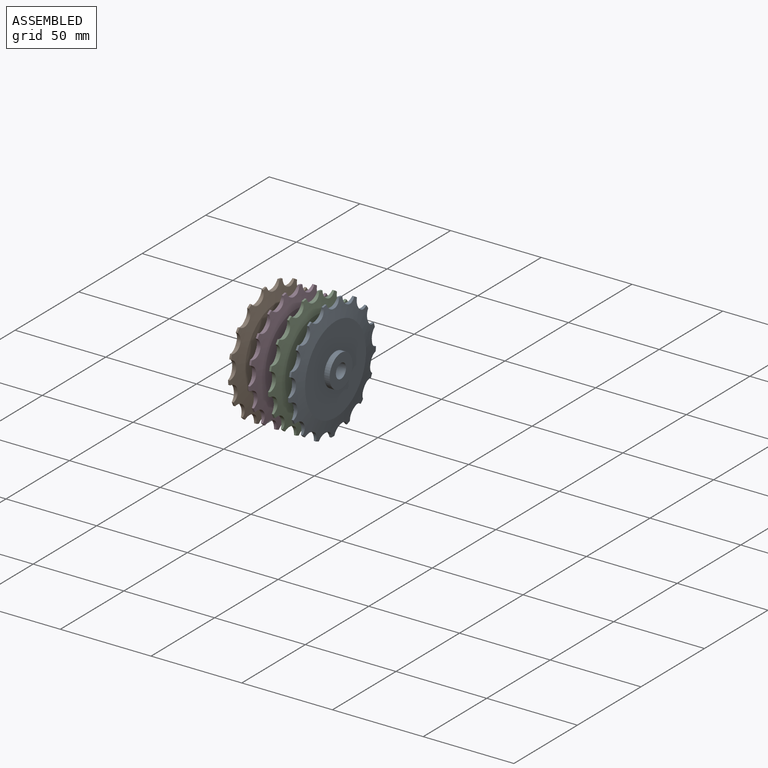
[diagram: assembled view]
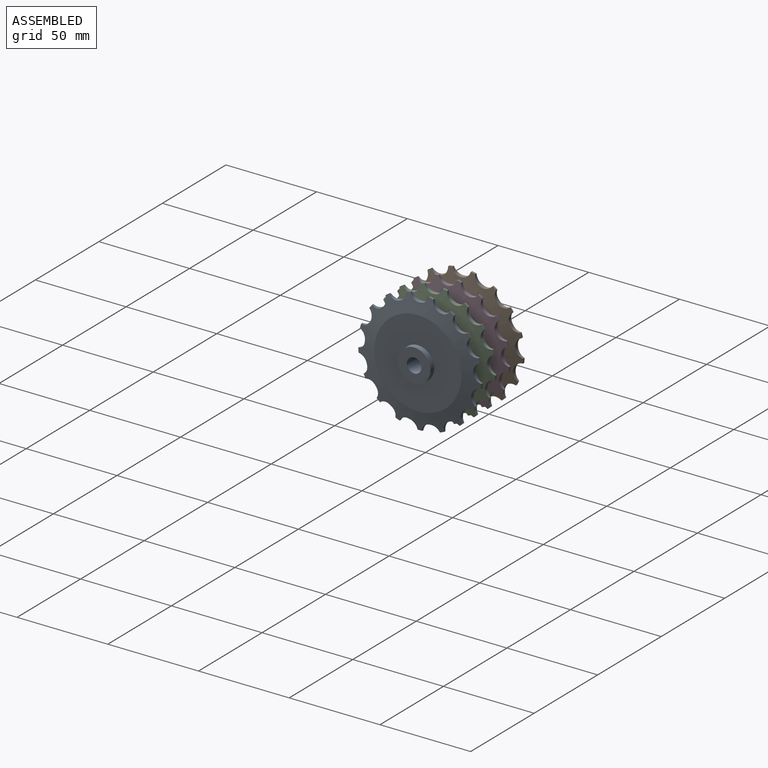
[diagram: assembled view, second angle]
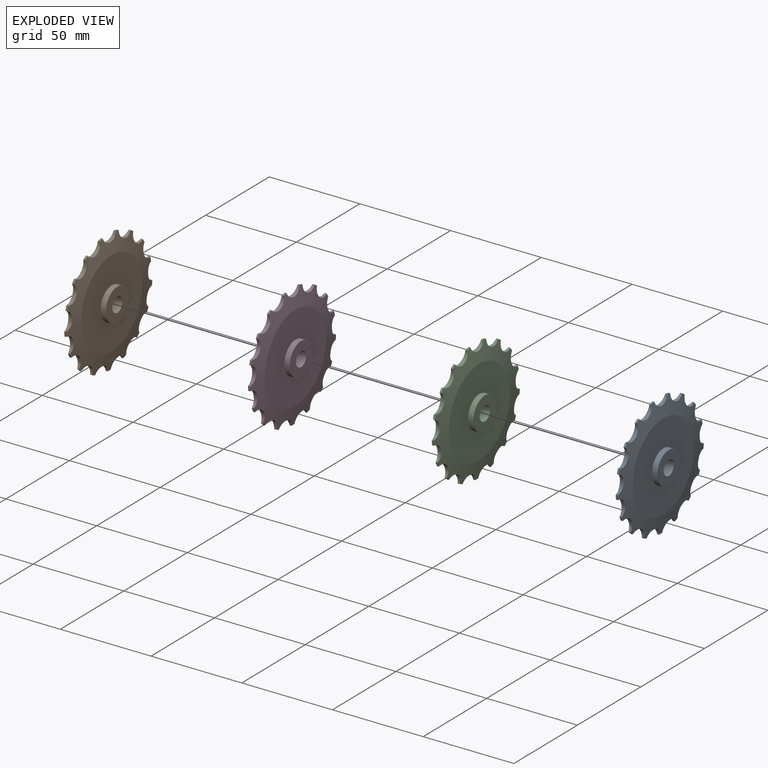
[diagram: exploded view]
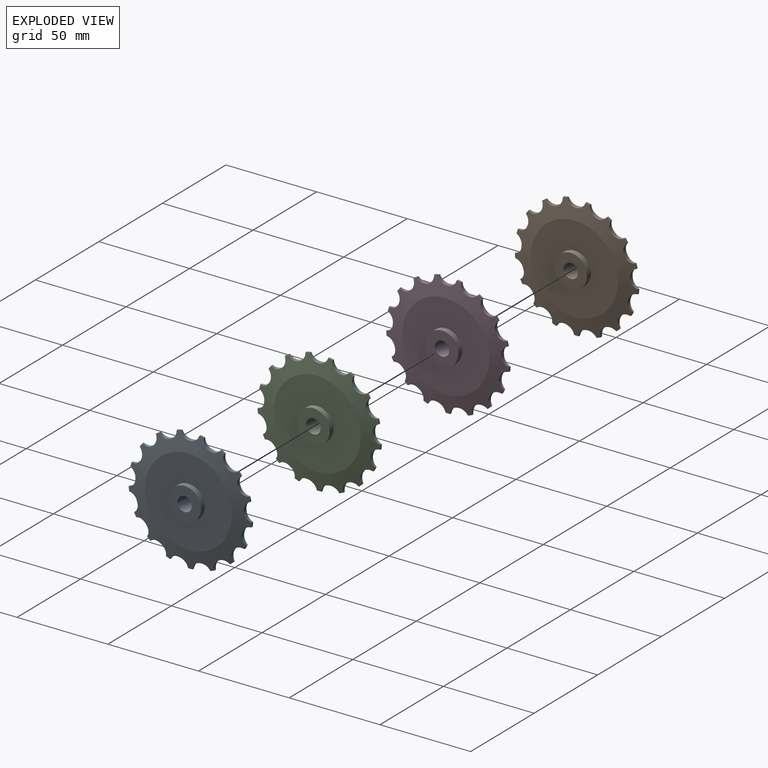
[diagram: exploded view, second angle]
ASSEMBLY  parts=4 mates=3
PART A: 111 faces, bbox 10x68x68 mm
  f0: cylinder r=34mm len=2.49mm, axis (1,0,0), area 2.5mm2, adj f3,f96,f104,f107
  f1: cylinder r=4.75mm len=5.34mm, axis (1,0,0), area 10.7mm2, adj f2,f5,f96,f104
  f2: plane 1.16x0.41mm, normal (0,-0.75,0.66), area 0.6mm2, adj f1,f6,f96,f104
  f3: plane 1.16x0.54mm, normal (0,1,-0.02), area 0.6mm2, adj f0,f4,f96,f104
  f4: cylinder r=4.75mm len=4.54mm, axis (1,0,0), area 10.7mm2, adj f3,f5,f96,f104
  f5: cylinder r=30mm len=2.2mm, axis (1,0,0), area 1.3mm2, adj f1,f4,f96,f104
  f6: cylinder r=34mm len=2.15mm, axis (1,0,0), area 2.5mm2, adj f2,f9,f96,f104
  f7: cylinder r=4.75mm len=5.44mm, axis (1,0,0), area 10.7mm2, adj f8,f11,f96,f104
  f8: plane 1.16x0.48mm, normal (0,-0.46,0.89), area 0.6mm2, adj f7,f12,f96,f104
  f9: plane 1.16x0.5mm, normal (0,0.92,-0.38), area 0.6mm2, adj f6,f10,f96,f104
  f10: cylinder r=4.75mm len=5.35mm, axis (1,0,0), area 10.7mm2, adj f9,f11,f96,f104
  f11: cylinder r=30mm len=2.2mm, axis (1,0,0), area 1.3mm2, adj f7,f10,f96,f104
  f12: cylinder r=34mm len=2.02mm, axis (1,0,0), area 2.5mm2, adj f8,f15,f96,f104
  f13: cylinder r=4.75mm len=4.81mm, axis (1,0,0), area 10.7mm2, adj f14,f17,f96,f104
  f14: plane 1.16x0.54mm, normal (0,-0.11,0.99), area 0.6mm2, adj f13,f18,f96,f104
  f15: plane 1.16x0.39mm, normal (0,0.73,-0.69), area 0.6mm2, adj f12,f16,f96,f104
  f16: cylinder r=4.75mm len=5.43mm, axis (1,0,0), area 10.7mm2, adj f15,f17,f96,f104
  f17: cylinder r=30mm len=2.2mm, axis (1,0,0), area 1.3mm2, adj f13,f16,f96,f104
  f18: cylinder r=34mm len=2.43mm, axis (1,0,0), area 2.5mm2, adj f14,f21,f96,f104
  f19: cylinder r=4.75mm len=4.2mm, axis (1,0,0), area 10.7mm2, adj f20,f23,f96,f104
  f20: plane 1.16x0.52mm, normal (0,0.25,0.97), area 0.6mm2, adj f19,f24,f96,f104
  f21: plane 1.16x0.49mm, normal (0,0.43,-0.9), area 0.6mm2, adj f18,f22,f96,f104
  f22: cylinder r=4.75mm len=4.78mm, axis (1,0,0), area 10.7mm2, adj f21,f23,f96,f104
  f23: cylinder r=30mm len=2.2mm, axis (1,0,0), area 1.3mm2, adj f19,f22,f96,f104
  f24: cylinder r=34mm len=2.52mm, axis (1,0,0), area 2.5mm2, adj f20,f27,f96,f104
  f25: cylinder r=4.75mm len=5.19mm, axis (1,0,0), area 10.7mm2, adj f26,f29,f96,f104
  f26: plane 1.16x0.44mm, normal (0,0.59,0.81), area 0.6mm2, adj f25,f30,f96,f104
  f27: plane 1.16x0.54mm, normal (0,0.07,-1), area 0.6mm2, adj f24,f28,f96,f104
  f28: cylinder r=4.75mm len=4.24mm, axis (1,0,0), area 10.7mm2, adj f27,f29,f96,f104
  f29: cylinder r=30mm len=2.2mm, axis (1,0,0), area 1.3mm2, adj f25,f28,f96,f104
  f30: cylinder r=34mm len=2.26mm, axis (1,0,0), area 2.5mm2, adj f26,f33,f96,f104
  f31: cylinder r=4.75mm len=5.48mm, axis (1,0,0), area 10.7mm2, adj f32,f35,f96,f104
  f32: plane 1.16x0.45mm, normal (0,0.84,0.54), area 0.6mm2, adj f31,f36,f96,f104
  f33: plane 1.16x0.52mm, normal (0,-0.29,-0.96), area 0.6mm2, adj f30,f34,f96,f104
  f34: cylinder r=4.75mm len=5.21mm, axis (1,0,0), area 10.7mm2, adj f33,f35,f96,f104
  f35: cylinder r=30mm len=2.2mm, axis (1,0,0), area 1.3mm2, adj f31,f34,f96,f104
  f36: cylinder r=34mm len=1.87mm, axis (1,0,0), area 2.5mm2, adj f32,f39,f96,f104
  f37: cylinder r=4.75mm len=5.03mm, axis (1,0,0), area 10.7mm2, adj f38,f41,f96,f104
  f38: plane 1.16x0.53mm, normal (0,0.98,0.2), area 0.6mm2, adj f37,f42,f96,f104
  f39: plane 1.16x0.42mm, normal (0,-0.62,-0.79), area 0.6mm2, adj f36,f40,f96,f104
  f40: cylinder r=4.75mm len=5.48mm, axis (1,0,0), area 10.7mm2, adj f39,f41,f96,f104
  f41: cylinder r=30mm len=2.2mm, axis (1,0,0), area 1.3mm2, adj f37,f40,f96,f104
  f42: cylinder r=34mm len=2.36mm, axis (1,0,0), area 2.5mm2, adj f38,f45,f96,f104
  f43: cylinder r=4.75mm len=3.9mm, axis (1,0,0), area 10.7mm2, adj f44,f47,f96,f104
  f44: plane 1.16x0.53mm, normal (0,0.99,-0.16), area 0.6mm2, adj f43,f48,f96,f104
  f45: plane 1.16x0.47mm, normal (0,-0.86,-0.51), area 0.6mm2, adj f42,f46,f96,f104
  f46: cylinder r=4.75mm len=5.01mm, axis (1,0,0), area 10.7mm2, adj f45,f47,f96,f104
  f47: cylinder r=30mm len=2.2mm, axis (1,0,0), area 1.3mm2, adj f43,f46,f96,f104
  f48: cylinder r=34mm len=2.53mm, axis (1,0,0), area 2.5mm2, adj f44,f51,f96,f104
  f49: cylinder r=4.75mm len=5.01mm, axis (1,0,0), area 10.7mm2, adj f50,f53,f96,f104
  f50: plane 1.16x0.47mm, normal (0,0.86,-0.51), area 0.6mm2, adj f49,f54,f96,f104
  f51: plane 1.16x0.53mm, normal (0,-0.99,-0.16), area 0.6mm2, adj f48,f52,f96,f104
  f52: cylinder r=4.75mm len=3.9mm, axis (1,0,0), area 10.7mm2, adj f51,f53,f96,f104
  f53: cylinder r=30mm len=2.2mm, axis (1,0,0), area 1.3mm2, adj f49,f52,f96,f104
  f54: cylinder r=34mm len=2.36mm, axis (1,0,0), area 2.5mm2, adj f50,f57,f96,f104
  f55: cylinder r=4.75mm len=5.48mm, axis (1,0,0), area 10.7mm2, adj f56,f59,f96,f104
  f56: plane 1.16x0.42mm, normal (0,0.62,-0.79), area 0.6mm2, adj f55,f60,f96,f104
  f57: plane 1.16x0.53mm, normal (0,-0.98,0.2), area 0.6mm2, adj f54,f58,f96,f104
  f58: cylinder r=4.75mm len=5.03mm, axis (1,0,0), area 10.7mm2, adj f57,f59,f96,f104
  f59: cylinder r=30mm len=2.2mm, axis (1,0,0), area 1.3mm2, adj f55,f58,f96,f104
  f60: cylinder r=34mm len=1.87mm, axis (1,0,0), area 2.5mm2, adj f56,f63,f96,f104
  f61: cylinder r=4.75mm len=5.21mm, axis (1,0,0), area 10.7mm2, adj f62,f65,f96,f104
  f62: plane 1.16x0.52mm, normal (0,0.29,-0.96), area 0.6mm2, adj f61,f66,f96,f104
  f63: plane 1.16x0.45mm, normal (0,-0.84,0.54), area 0.6mm2, adj f60,f64,f96,f104
  f64: cylinder r=4.75mm len=5.48mm, axis (1,0,0), area 10.7mm2, adj f63,f65,f96,f104
  f65: cylinder r=30mm len=2.2mm, axis (1,0,0), area 1.3mm2, adj f61,f64,f96,f104
  f66: cylinder r=34mm len=2.26mm, axis (1,0,0), area 2.5mm2, adj f62,f69,f96,f104
  f67: cylinder r=4.75mm len=4.24mm, axis (1,0,0), area 10.7mm2, adj f68,f71,f96,f104
  f68: plane 1.16x0.54mm, normal (0,-0.07,-1), area 0.6mm2, adj f67,f72,f96,f104
  f69: plane 1.16x0.44mm, normal (0,-0.59,0.81), area 0.6mm2, adj f66,f70,f96,f104
  f70: cylinder r=4.75mm len=5.19mm, axis (1,0,0), area 10.7mm2, adj f69,f71,f96,f104
  f71: cylinder r=30mm len=2.2mm, axis (1,0,0), area 1.3mm2, adj f67,f70,f96,f104
  f72: cylinder r=34mm len=2.52mm, axis (1,0,0), area 2.5mm2, adj f68,f75,f96,f104
  f73: cylinder r=4.75mm len=4.78mm, axis (1,0,0), area 10.7mm2, adj f74,f77,f96,f104
  f74: plane 1.16x0.49mm, normal (0,-0.43,-0.9), area 0.6mm2, adj f73,f78,f96,f104
  f75: plane 1.16x0.52mm, normal (0,-0.25,0.97), area 0.6mm2, adj f72,f76,f96,f104
  f76: cylinder r=4.75mm len=4.2mm, axis (1,0,0), area 10.7mm2, adj f75,f77,f96,f104
  f77: cylinder r=30mm len=2.2mm, axis (1,0,0), area 1.3mm2, adj f73,f76,f96,f104
  f78: cylinder r=34mm len=2.43mm, axis (1,0,0), area 2.5mm2, adj f74,f81,f96,f104
  f79: cylinder r=4.75mm len=5.43mm, axis (1,0,0), area 10.7mm2, adj f80,f83,f96,f104
  f80: plane 1.16x0.39mm, normal (0,-0.73,-0.69), area 0.6mm2, adj f79,f84,f96,f104
  f81: plane 1.16x0.54mm, normal (0,0.11,0.99), area 0.6mm2, adj f78,f82,f96,f104
  f82: cylinder r=4.75mm len=4.81mm, axis (1,0,0), area 10.7mm2, adj f81,f83,f96,f104
  f83: cylinder r=30mm len=2.2mm, axis (1,0,0), area 1.3mm2, adj f79,f82,f96,f104
  f84: cylinder r=34mm len=2.02mm, axis (1,0,0), area 2.5mm2, adj f80,f87,f96,f104
  f85: cylinder r=4.75mm len=5.35mm, axis (1,0,0), area 10.7mm2, adj f86,f89,f96,f104
  f86: plane 1.16x0.5mm, normal (0,-0.92,-0.38), area 0.6mm2, adj f85,f90,f96,f104
  f87: plane 1.16x0.48mm, normal (0,0.46,0.89), area 0.6mm2, adj f84,f88,f96,f104
  f88: cylinder r=4.75mm len=5.44mm, axis (1,0,0), area 10.7mm2, adj f87,f89,f96,f104
  f89: cylinder r=30mm len=2.2mm, axis (1,0,0), area 1.3mm2, adj f85,f88,f96,f104
  f90: cylinder r=34mm len=2.15mm, axis (1,0,0), area 2.5mm2, adj f86,f93,f96,f104
  f91: cylinder r=4.75mm len=4.54mm, axis (1,0,0), area 10.7mm2, adj f92,f95,f96,f104
  f92: plane 1.16x0.54mm, normal (0,-1,-0.02), area 0.6mm2, adj f91,f96,f104,f105
  f93: plane 1.16x0.41mm, normal (0,0.75,0.66), area 0.6mm2, adj f90,f94,f96,f104
  f94: cylinder r=4.75mm len=5.34mm, axis (1,0,0), area 10.7mm2, adj f93,f95,f96,f104
  f95: cylinder r=30mm len=2.2mm, axis (1,0,0), area 1.3mm2, adj f91,f94,f96,f104
  f96: cone r=34mm half-angle=81.5deg, axis (1,0,0), area 1327.6mm2, adj f0,f1,f2,f3,f4,f5,f6,f7
  f97: plane 48x48mm, normal (-1,0,0), area 1555.1mm2, adj f96,f98
  f98: cylinder r=9mm len=18mm, axis (1,0,0), area 169.6mm2, adj f97,f99
  f99: plane 18x18mm, normal (-1,0,0), area 204.2mm2, adj f98,f100
  f100: cylinder r=4mm len=10mm, axis (1,0,0), area 251.3mm2, adj f99,f101
  f101: plane 18x18mm, normal (1,0,0), area 204.2mm2, adj f100,f102
  f102: cylinder r=9mm len=18mm, axis (1,0,0), area 169.6mm2, adj f101,f103
  f103: plane 48x48mm, normal (1,0,0), area 1555.1mm2, adj f102,f104
  f104: cone r=34mm half-angle=81.5deg, axis (-1,0,0), area 1327.6mm2, adj f0,f1,f2,f3,f4,f5,f6,f7
  f105: cylinder r=34mm len=2.49mm, axis (1,0,0), area 2.5mm2, adj f92,f96,f104,f108
  f106: cylinder r=4.75mm len=4.51mm, axis (1,0,0), area 10.7mm2, adj f96,f104,f107,f110
  f107: plane 1.16x0.51mm, normal (0,-0.94,0.34), area 0.6mm2, adj f0,f96,f104,f106
  f108: plane 1.16x0.51mm, normal (0,0.94,0.34), area 0.6mm2, adj f96,f104,f105,f109
  f109: cylinder r=4.75mm len=4.51mm, axis (1,0,0), area 10.7mm2, adj f96,f104,f108,f110
  f110: cylinder r=30mm len=2.2mm, axis (1,0,0), area 1.3mm2, adj f96,f104,f106,f109
PART B: same geometry as A
PART C: same geometry as A
PART D: same geometry as A
PLACE A rot(axis=(0.63,-0.15,-0.77),0deg) t=(-15.74,-13.71,2.77)mm
PLACE B rot(axis=(0.63,-0.15,-0.77),0deg) t=(-48.74,-13.71,2.77)mm
PLACE C rot(axis=(0.63,-0.15,-0.77),0deg) t=(-26.74,-13.71,2.77)mm
PLACE D rot(axis=(0.63,-0.15,-0.77),0deg) t=(-37.74,-13.71,2.77)mm
MATE fastened D.f0 <-> C.f0  axis (1,0,0) through (-32.74,-13.71,2.77)mm
MATE fastened A.f0 <-> C.f0  axis (1,0,0) through (-20.74,-13.71,2.77)mm
MATE fastened D.f0 <-> B.f0  axis (-1,0,0) through (-42.74,-13.71,2.77)mm
